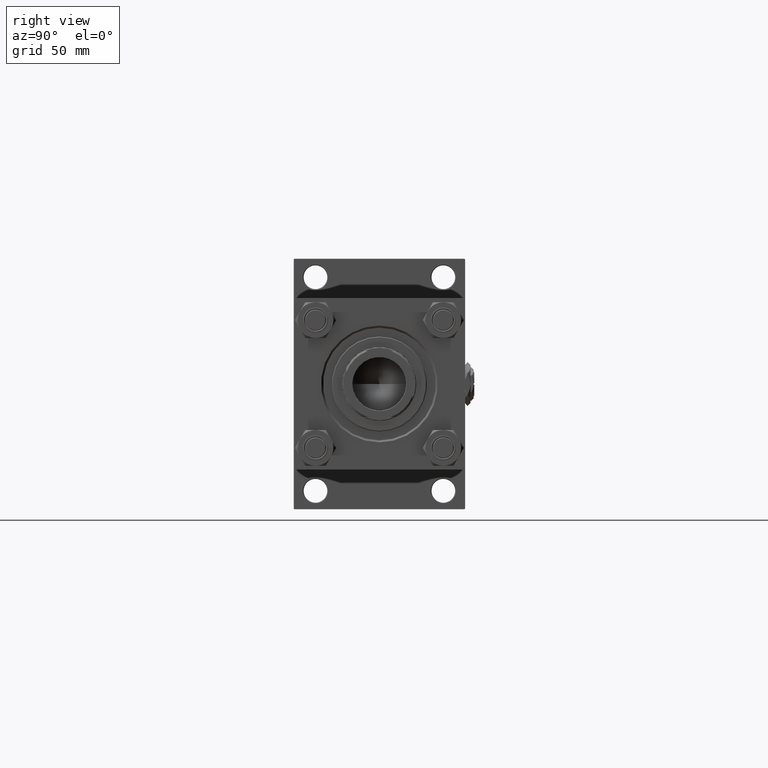
[diagram: clean part render]
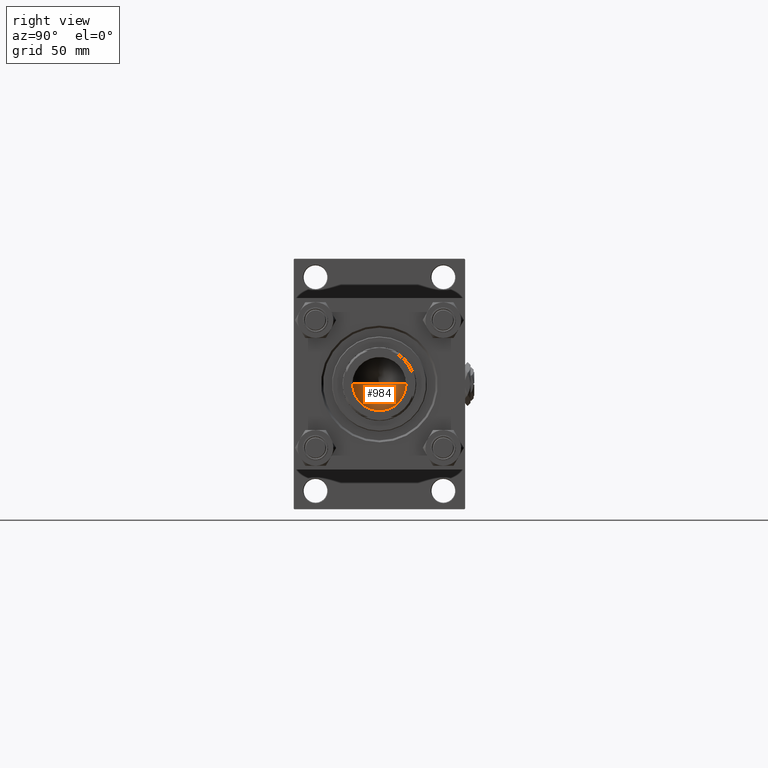
[diagram: same view with one face highlighted and labeled with its STEP entity id]
A machine part, right view. The second image highlights one B-rep face of the part: STEP entity #984.
In plain terms, the highlighted conical surface has half-angle 59 deg.
Its self-contained STEP definition (entity closure, byte-faithful):
#984 = ADVANCED_FACE ( 'NONE', ( #49376 ), #52207, .F. ) ;
#4273 = LINE ( 'NONE', #28499, #13349 ) ;
#4418 = EDGE_CURVE ( 'NONE', #7777, #18994, #52276, .T. ) ;
#5506 = ORIENTED_EDGE ( 'NONE', *, *, #4418, .T. ) ;
#6809 = CARTESIAN_POINT ( 'NONE',  ( 20.24999999999998934, 0.000000000000000000, 397.0000000000000000 ) ) ;
#7601 = CIRCLE ( 'NONE', #12675, 20.24999999999998934 ) ;
#7777 = VERTEX_POINT ( 'NONE', #27759 ) ;
#8411 = DIRECTION ( 'NONE',  ( -0.000000000000000000, -0.000000000000000000, 1.000000000000000000 ) ) ;
#12656 = DIRECTION ( 'NONE',  ( 1.000000000000000000, 0.000000000000000000, 0.000000000000000000 ) ) ;
#12675 = AXIS2_PLACEMENT_3D ( 'NONE', #49072, #8411, #12656 ) ;
#13349 = VECTOR ( 'NONE', #36716, 1000.000000000000000 ) ;
#14247 = ORIENTED_EDGE ( 'NONE', *, *, #45650, .F. ) ;
#14450 = EDGE_CURVE ( 'NONE', #18994, #44477, #7601, .T. ) ;
#18994 = VERTEX_POINT ( 'NONE', #6809 ) ;
#19961 = AXIS2_PLACEMENT_3D ( 'NONE', #37422, #29475, #25481 ) ;
#21790 = VECTOR ( 'NONE', #40299, 1000.000000000000000 ) ;
#25481 = DIRECTION ( 'NONE',  ( 1.000000000000000000, 0.000000000000000000, 0.000000000000000000 ) ) ;
#27759 = CARTESIAN_POINT ( 'NONE',  ( -1.584115414415908206E-14, 0.000000000000000000, 384.8325724646919070 ) ) ;
#28499 = CARTESIAN_POINT ( 'NONE',  ( -20.24999999999998934, 2.479909768273389117E-15, 397.0000000000000000 ) ) ;
#29046 = ORIENTED_EDGE ( 'NONE', *, *, #14450, .T. ) ;
#29475 = DIRECTION ( 'NONE',  ( -0.000000000000000000, -0.000000000000000000, 1.000000000000000000 ) ) ;
#36716 = DIRECTION ( 'NONE',  ( -0.8571673007021112234, 1.049727191138617340E-16, 0.5150380749100560429 ) ) ;
#37422 = CARTESIAN_POINT ( 'NONE',  ( 0.000000000000000000, 0.000000000000000000, 397.0000000000000000 ) ) ;
#40299 = DIRECTION ( 'NONE',  ( 0.8571673007021112234, 0.000000000000000000, 0.5150380749100560429 ) ) ;
#40562 = CARTESIAN_POINT ( 'NONE',  ( 20.24999999999998934, 0.000000000000000000, 397.0000000000000000 ) ) ;
#42065 = EDGE_LOOP ( 'NONE', ( #14247, #5506, #29046 ) ) ;
#44477 = VERTEX_POINT ( 'NONE', #45862 ) ;
#45650 = EDGE_CURVE ( 'NONE', #7777, #44477, #4273, .T. ) ;
#45862 = CARTESIAN_POINT ( 'NONE',  ( -20.24999999999998934, 2.479909768273389117E-15, 397.0000000000000000 ) ) ;
#49072 = CARTESIAN_POINT ( 'NONE',  ( 0.000000000000000000, 0.000000000000000000, 397.0000000000000000 ) ) ;
#49376 = FACE_OUTER_BOUND ( 'NONE', #42065, .T. ) ;
#52207 = CONICAL_SURFACE ( 'NONE', #19961, 20.24999999999998934, 1.029744258676652313 ) ;
#52276 = LINE ( 'NONE', #40562, #21790 ) ;